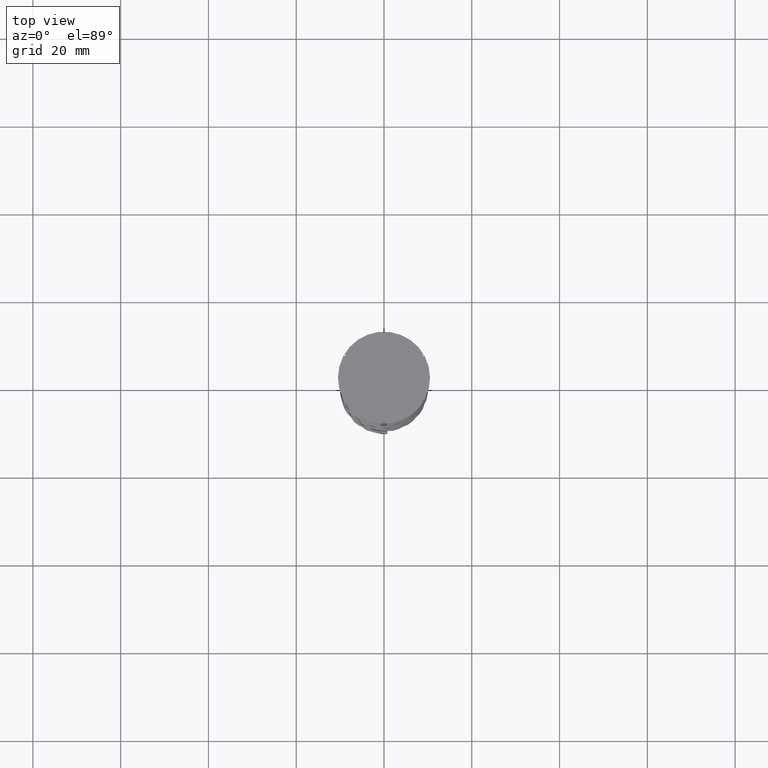
[diagram: clean part render]
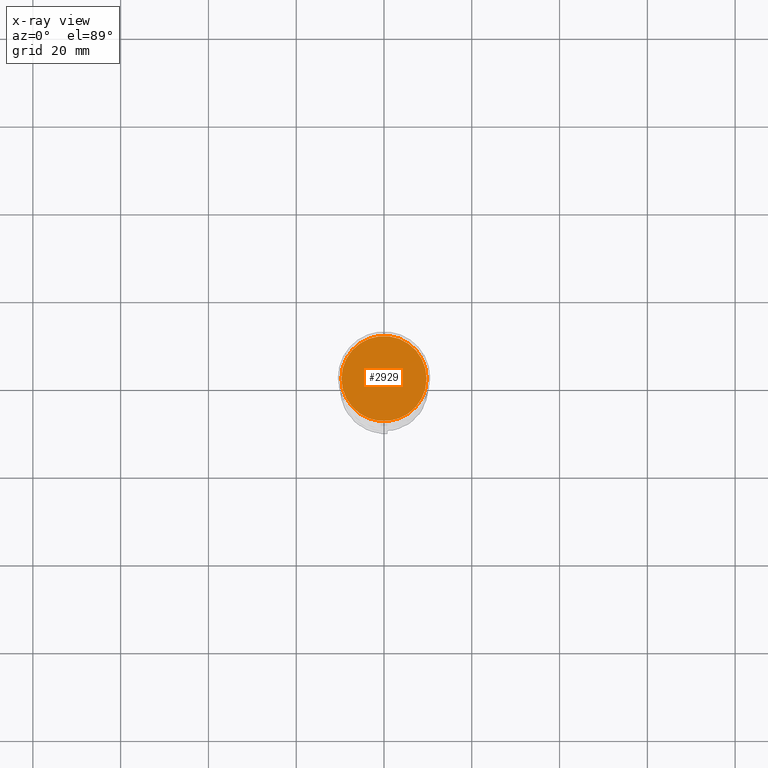
[diagram: x-ray — body ghosted, one internal face saturated and labeled with its STEP entity id]
A machine part, top view, then the same camera in x-ray: the body is ghosted and one INTERNAL B-rep face — a face not visible from any outside direction — is saturated and labeled: STEP entity #2929.
In plain terms, the highlighted planar face has unit normal (0, 0, -1).
Its self-contained STEP definition (entity closure, byte-faithful):
#180 = DIRECTION ( 'NONE',  ( 0.000000000000000000, 0.000000000000000000, -1.000000000000000000 ) ) ;
#250 = CARTESIAN_POINT ( 'NONE',  ( 0.000000000000000000, 0.000000000000000000, -12.00000000000000000 ) ) ;
#265 = DIRECTION ( 'NONE',  ( -0.000000000000000000, -0.000000000000000000, 1.000000000000000000 ) ) ;
#304 = VERTEX_POINT ( 'NONE', #2947 ) ;
#413 = AXIS2_PLACEMENT_3D ( 'NONE', #3163, #180, #1986 ) ;
#658 = CARTESIAN_POINT ( 'NONE',  ( -9.700000000000002842, 0.000000000000000000, -12.00000000000000000 ) ) ;
#1077 = ORIENTED_EDGE ( 'NONE', *, *, #3501, .T. ) ;
#1127 = DIRECTION ( 'NONE',  ( -1.000000000000000000, 0.000000000000000000, 0.000000000000000000 ) ) ;
#1236 = ORIENTED_EDGE ( 'NONE', *, *, #3117, .T. ) ;
#1551 = AXIS2_PLACEMENT_3D ( 'NONE', #2013, #3464, #1720 ) ;
#1698 = PLANE ( 'NONE',  #413 ) ;
#1720 = DIRECTION ( 'NONE',  ( -1.000000000000000000, 0.000000000000000000, 0.000000000000000000 ) ) ;
#1986 = DIRECTION ( 'NONE',  ( -1.000000000000000000, 0.000000000000000000, -0.000000000000000000 ) ) ;
#2013 = CARTESIAN_POINT ( 'NONE',  ( 0.000000000000000000, 0.000000000000000000, -12.00000000000000000 ) ) ;
#2929 = ADVANCED_FACE ( 'NONE', ( #3796 ), #1698, .F. ) ;
#2947 = CARTESIAN_POINT ( 'NONE',  ( 9.700000000000002842, 1.206277097160143024E-15, -12.00000000000000000 ) ) ;
#3117 = EDGE_CURVE ( 'NONE', #3431, #304, #3718, .T. ) ;
#3163 = CARTESIAN_POINT ( 'NONE',  ( 0.000000000000000000, 0.000000000000000000, -12.00000000000000000 ) ) ;
#3271 = CIRCLE ( 'NONE', #1551, 9.700000000000002842 ) ;
#3298 = EDGE_LOOP ( 'NONE', ( #1236, #1077 ) ) ;
#3431 = VERTEX_POINT ( 'NONE', #658 ) ;
#3464 = DIRECTION ( 'NONE',  ( -0.000000000000000000, -0.000000000000000000, 1.000000000000000000 ) ) ;
#3501 = EDGE_CURVE ( 'NONE', #304, #3431, #3271, .T. ) ;
#3718 = CIRCLE ( 'NONE', #3786, 9.700000000000002842 ) ;
#3786 = AXIS2_PLACEMENT_3D ( 'NONE', #250, #265, #1127 ) ;
#3796 = FACE_OUTER_BOUND ( 'NONE', #3298, .T. ) ;